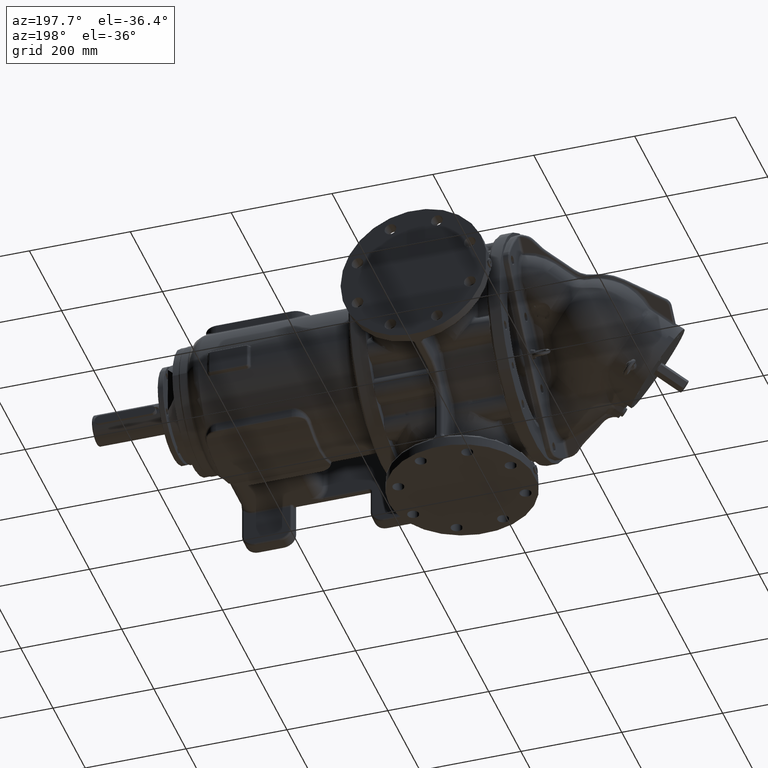
[diagram: clean part render]
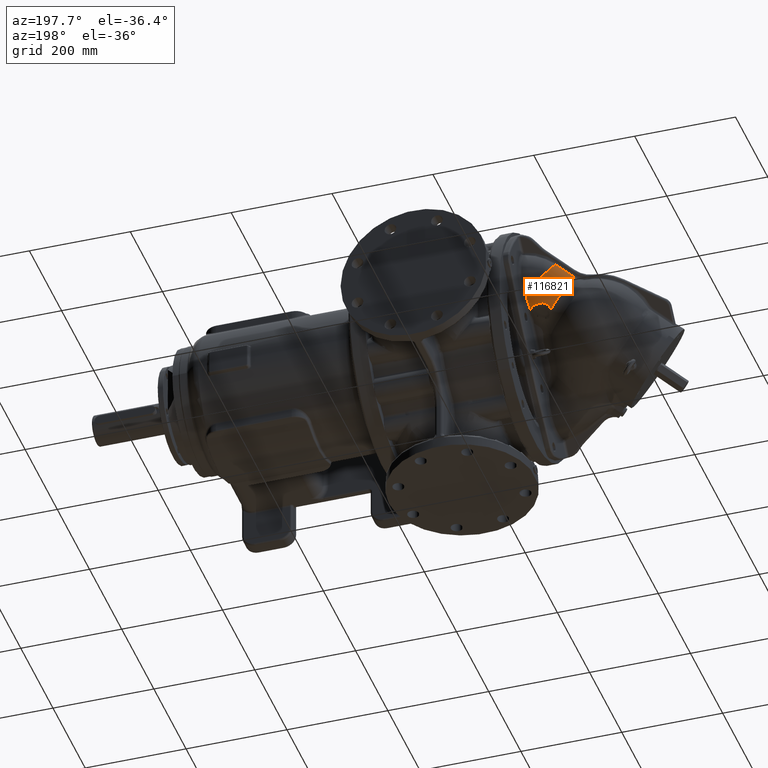
[diagram: same view with one face highlighted and labeled with its STEP entity id]
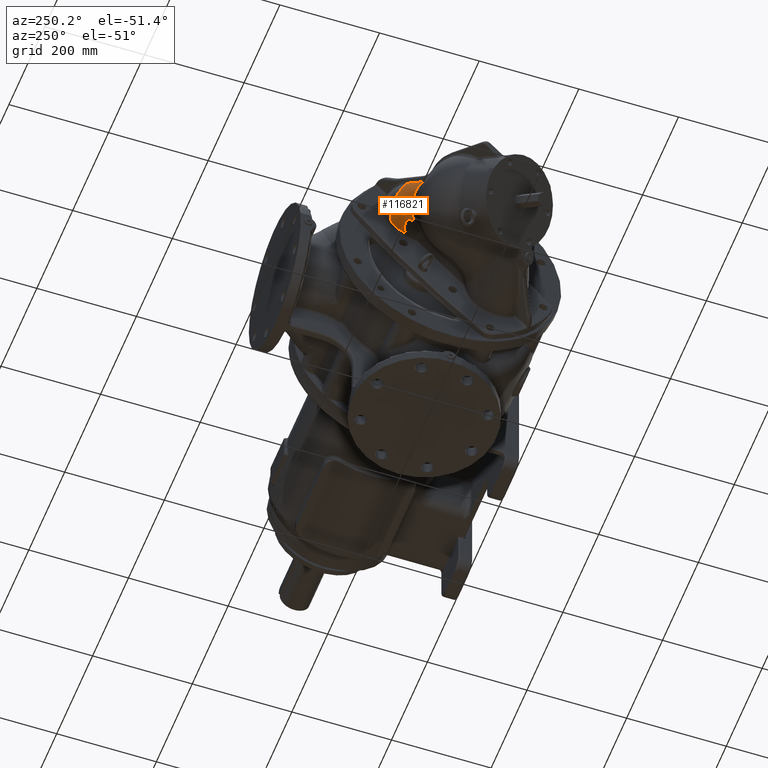
[diagram: same view with one face highlighted and labeled with its STEP entity id]
A machine part, auxiliary view. The second image highlights one B-rep face of the part: STEP entity #116821.
A second angle (auxiliary view) of the same face is appended — the face is thin or edge-on in the first view.
In plain terms, the highlighted cylindrical surface (edge-blend (fillet) strip) has radius 60.5 mm, axis along (-0.7071, -0.5, -0.5).
Its self-contained STEP definition (entity closure, byte-faithful):
#30306=CARTESIAN_POINT('',(-3.602881022043E2,1.137920930979E2,
9.942214244027E1));
#33292=DIRECTION('',(7.071103408978E-1,5.000103968482E-1,4.999845686010E-1));
#33293=VECTOR('',#33292,4.293914929783E1);
#33294=CARTESIAN_POINT('',(-3.906508187022E2,9.232207201714E1,
7.795323040250E1));
#33295=LINE('',#33294,#33293);
#33296=CARTESIAN_POINT('',(-3.484784450716E2,5.531727983645E1,
5.531727983646E1));
#33297=DIRECTION('',(-7.071067811866E-1,-5.E-1,-5.E-1));
#33298=DIRECTION('',(-6.970640269568E-1,6.116494575282E-1,3.741479432366E-1));
#33299=AXIS2_PLACEMENT_3D('',#33296,#33297,#33298);
#33301=CARTESIAN_POINT('',(-3.277808615411E2,1.064392253892E2,
2.131203307468E1));
#33302=CARTESIAN_POINT('',(-3.279172393567E2,1.064547069628E2,
2.131260126256E1));
#33303=CARTESIAN_POINT('',(-3.281902650575E2,1.064826438563E2,
2.131181172310E1));
#33304=CARTESIAN_POINT('',(-3.286008109201E2,1.065153525661E2,
2.130459424785E1));
#33305=CARTESIAN_POINT('',(-3.290117952177E2,1.065388436935E2,
2.129122580244E1));
#33306=CARTESIAN_POINT('',(-3.294228330722E2,1.065530880481E2,
2.127156127719E1));
#33307=CARTESIAN_POINT('',(-3.298334728117E2,1.065581011256E2,
2.124549515724E1));
#33308=CARTESIAN_POINT('',(-3.302432637518E2,1.065539272547E2,
2.121294351944E1));
#33309=CARTESIAN_POINT('',(-3.306517613649E2,1.065406511843E2,
2.117385583363E1));
#33310=CARTESIAN_POINT('',(-3.310584645723E2,1.065183656514E2,
2.112819027146E1));
#33311=CARTESIAN_POINT('',(-3.314631197318E2,1.064873318132E2,
2.107604404995E1));
#33312=CARTESIAN_POINT('',(-3.318658394777E2,1.064475847668E2,
2.101729238437E1));
#33313=CARTESIAN_POINT('',(-3.322666610266E2,1.063991571414E2,
2.095181832074E1));
#33314=CARTESIAN_POINT('',(-3.326656119636E2,1.063420667405E2,
2.087949733050E1));
#33315=CARTESIAN_POINT('',(-3.330621428015E2,1.062764238656E2,
2.080032159138E1));
#33316=CARTESIAN_POINT('',(-3.334557334932E2,1.062023660357E2,
2.071430707090E1));
#33317=CARTESIAN_POINT('',(-3.338458480612E2,1.061201013535E2,
2.062153836824E1));
#33318=CARTESIAN_POINT('',(-3.342321933315E2,1.060298457554E2,
2.052210225938E1));
#33319=CARTESIAN_POINT('',(-3.346144992373E2,1.059316505338E2,
2.041593368198E1));
#33320=CARTESIAN_POINT('',(-3.349924595697E2,1.058256434611E2,
2.030304569545E1));
#33321=CARTESIAN_POINT('',(-3.353661177528E2,1.057118624400E2,
2.018336096707E1));
#33322=CARTESIAN_POINT('',(-3.357355718940E2,1.055903111624E2,
2.005677545059E1));
#33323=CARTESIAN_POINT('',(-3.361009445739E2,1.054610124495E2,
1.992321077648E1));
#33324=CARTESIAN_POINT('',(-3.364620368581E2,1.053240783247E2,
1.978268990642E1));
#33325=CARTESIAN_POINT('',(-3.368185903566E2,1.051795585636E2,
1.963518275496E1));
#33326=CARTESIAN_POINT('',(-3.371702515848E2,1.050275776564E2,
1.948073964694E1));
#33327=CARTESIAN_POINT('',(-3.375163769180E2,1.048684032441E2,
1.931956180639E1));
#33328=CARTESIAN_POINT('',(-3.378563760516E2,1.047023623348E2,
1.915191411658E1));
#33329=CARTESIAN_POINT('',(-3.381899214578E2,1.045296689458E2,
1.897795472304E1));
#33330=CARTESIAN_POINT('',(-3.385165337797E2,1.043505363835E2,
1.879785116942E1));
#33331=CARTESIAN_POINT('',(-3.388365489011E2,1.041648167882E2,
1.861141400500E1));
#33332=CARTESIAN_POINT('',(-3.391514774737E2,1.039715841939E2,
1.841768384877E1));
#33333=CARTESIAN_POINT('',(-3.394621390674E2,1.037701601847E2,
1.821596157034E1));
#33334=CARTESIAN_POINT('',(-3.397664084668E2,1.035617856273E2,
1.800747818908E1));
#33335=CARTESIAN_POINT('',(-3.400626887905E2,1.033475744058E2,
1.779334248951E1));
#33336=CARTESIAN_POINT('',(-3.403514200727E2,1.031272141609E2,
1.757324582723E1));
#33337=CARTESIAN_POINT('',(-3.406328023609E2,1.029003804659E2,
1.734687959237E1));
#33338=CARTESIAN_POINT('',(-3.409067288881E2,1.026669674829E2,
1.711416341298E1));
#33339=CARTESIAN_POINT('',(-3.411731466827E2,1.024269140493E2,
1.687507013429E1));
#33340=CARTESIAN_POINT('',(-3.414320798041E2,1.021801843570E2,
1.662960635018E1));
#33341=CARTESIAN_POINT('',(-3.416834688712E2,1.019267819678E2,
1.637782808610E1));
#33342=CARTESIAN_POINT('',(-3.419270572625E2,1.016667383726E2,
1.611983172519E1));
#33343=CARTESIAN_POINT('',(-3.421624934980E2,1.014000296110E2,
1.585567222405E1));
#33344=CARTESIAN_POINT('',(-3.423894472189E2,1.011266113936E2,
1.558539674011E1));
#33345=CARTESIAN_POINT('',(-3.426080382413E2,1.008462231935E2,
1.530884586816E1));
#33346=CARTESIAN_POINT('',(-3.428183568641E2,1.005586125818E2,
1.502588078197E1));
#33347=CARTESIAN_POINT('',(-3.430203585746E2,1.002635009397E2,
1.473635389066E1));
#33348=CARTESIAN_POINT('',(-3.432134409558E2,9.996111483195E1,
1.444063298601E1));
#33349=CARTESIAN_POINT('',(-3.433971110222E2,9.965170536976E1,
1.413911944787E1));
#33350=CARTESIAN_POINT('',(-3.435709899270E2,9.933556441358E1,
1.383226094184E1));
#33351=CARTESIAN_POINT('',(-3.437353148459E2,9.901209912106E1,
1.351965449905E1));
#33352=CARTESIAN_POINT('',(-3.438900443488E2,9.868064739194E1,
1.320086185876E1));
#33353=CARTESIAN_POINT('',(-3.440350425975E2,9.834050312844E1,
1.287543317448E1));
#33354=CARTESIAN_POINT('',(-3.441699527057E2,9.799180109802E1,
1.254374034147E1));
#33355=CARTESIAN_POINT('',(-3.442945241023E2,9.763472549459E1,
1.220620864435E1));
#33356=CARTESIAN_POINT('',(-3.444082466069E2,9.726942218803E1,
1.186325486520E1));
#33357=CARTESIAN_POINT('',(-3.445104824120E2,9.689632104495E1,
1.151558014883E1));
#33358=CARTESIAN_POINT('',(-3.446009998803E2,9.651591601115E1,
1.116392827935E1));
#33359=CARTESIAN_POINT('',(-3.446795803299E2,9.612875057253E1,
1.080908691506E1));
#33360=CARTESIAN_POINT('',(-3.447458505142E2,9.573533875198E1,
1.045183062546E1));
#33361=CARTESIAN_POINT('',(-3.447816147426E2,9.546951969253E1,
1.021280470531E1));
#33362=CARTESIAN_POINT('',(-3.447973353311E2,9.533563299589E1,
1.009305135785E1));
#33364=CARTESIAN_POINT('',(-3.154133901482E2,1.037176145127E2,
2.128139557582E1));
#33365=CARTESIAN_POINT('',(-3.156533233150E2,1.038047506161E2,
2.128418616440E1));
#33366=CARTESIAN_POINT('',(-3.161506234311E2,1.039796696093E2,
2.128916459807E1));
#33367=CARTESIAN_POINT('',(-3.169525821759E2,1.042431386414E2,
2.129499993852E1));
#33368=CARTESIAN_POINT('',(-3.178017914878E2,1.045026743608E2,
2.129919709634E1));
#33369=CARTESIAN_POINT('',(-3.186933380094E2,1.047551683573E2,
2.130176114878E1));
#33370=CARTESIAN_POINT('',(-3.196381509782E2,1.050024791675E2,
2.130319217153E1));
#33371=CARTESIAN_POINT('',(-3.206383693559E2,1.052428189445E2,
2.130352118853E1));
#33372=CARTESIAN_POINT('',(-3.216892583095E2,1.054737468909E2,
2.130339835771E1));
#33373=CARTESIAN_POINT('',(-3.227959762805E2,1.056946099015E2,
2.130313742238E1));
#33374=CARTESIAN_POINT('',(-3.239587412003E2,1.059035818109E2,
2.130316808749E1));
#33375=CARTESIAN_POINT('',(-3.251747525406E2,1.060988410875E2,
2.130426432655E1));
#33376=CARTESIAN_POINT('',(-3.264454057129E2,1.062788429276E2,
2.130681459625E1));
#33377=CARTESIAN_POINT('',(-3.273295726295E2,1.063877884164E2,
2.130997626209E1));
#33378=CARTESIAN_POINT('',(-3.277808615411E2,1.064392253892E2,
2.131203307468E1));
#33380=CARTESIAN_POINT('',(-3.078408724165E2,9.899027769930E1,
2.060664155775E1));
#33381=CARTESIAN_POINT('',(-3.079323810160E2,9.908670762559E1,
2.062691541502E1));
#33382=CARTESIAN_POINT('',(-3.081192372322E2,9.927849184230E1,
2.066667055192E1));
#33383=CARTESIAN_POINT('',(-3.084113079735E2,9.956305586221E1,
2.072400006620E1));
#33384=CARTESIAN_POINT('',(-3.087146410465E2,9.984376583370E1,
2.077891261385E1));
#33385=CARTESIAN_POINT('',(-3.090288602912E2,1.001200821305E2,
2.083132438669E1));
#33386=CARTESIAN_POINT('',(-3.093535980969E2,1.003914542730E2,
2.088112685176E1));
#33387=CARTESIAN_POINT('',(-3.096881245784E2,1.006570426905E2,
2.092813301077E1));
#33388=CARTESIAN_POINT('',(-3.100333977453E2,1.009171728908E2,
2.097227702765E1));
#33389=CARTESIAN_POINT('',(-3.103918820838E2,1.011734924513E2,
2.101385146516E1));
#33390=CARTESIAN_POINT('',(-3.107657710010E2,1.014270305822E2,
2.105297347001E1));
#33391=CARTESIAN_POINT('',(-3.111542819382E2,1.016766880366E2,
2.108941739249E1));
#33392=CARTESIAN_POINT('',(-3.115561198682E2,1.019212897679E2,
2.112299804476E1));
#33393=CARTESIAN_POINT('',(-3.119720168404E2,1.021609931096E2,
2.115372953560E1));
#33394=CARTESIAN_POINT('',(-3.124038067869E2,1.023961585584E2,
2.118148555357E1));
#33395=CARTESIAN_POINT('',(-3.128534156201E2,1.026272266355E2,
2.120622064827E1));
#33396=CARTESIAN_POINT('',(-3.133240761224E2,1.028549692610E2,
2.122782675513E1));
#33397=CARTESIAN_POINT('',(-3.138176345901E2,1.030800717295E2,
2.124661638459E1));
#33398=CARTESIAN_POINT('',(-3.143315007631E2,1.033002566714E2,
2.126212744638E1));
#33399=CARTESIAN_POINT('',(-3.148637677203E2,1.035138016470E2,
2.127396326772E1));
#33400=CARTESIAN_POINT('',(-3.152284118981E2,1.036505605715E2,
2.127932761232E1));
#33401=CARTESIAN_POINT('',(-3.154133901482E2,1.037176145127E2,
2.128139557582E1));
#33403=CARTESIAN_POINT('',(-3.042684805720E2,9.278184176513E1,
1.903214689970E1));
#33404=CARTESIAN_POINT('',(-3.042935118779E2,9.288416432459E1,
1.906394915369E1));
#33405=CARTESIAN_POINT('',(-3.043471062585E2,9.309063114216E1,
1.912738493394E1));
#33406=CARTESIAN_POINT('',(-3.044406255005E2,9.340947252018E1,
1.922281746591E1));
#33407=CARTESIAN_POINT('',(-3.045454114448E2,9.373254933217E1,
1.931740178862E1));
#33408=CARTESIAN_POINT('',(-3.046608731712E2,9.405728437773E1,
1.941046454102E1));
#33409=CARTESIAN_POINT('',(-3.047859639758E2,9.438036774257E1,
1.950112033651E1));
#33410=CARTESIAN_POINT('',(-3.049196681405E2,9.469921235954E1,
1.958870119227E1));
#33411=CARTESIAN_POINT('',(-3.050630277073E2,9.501611092120E1,
1.967385708562E1));
#33412=CARTESIAN_POINT('',(-3.052174723351E2,9.533259608665E1,
1.975681826168E1));
#33413=CARTESIAN_POINT('',(-3.053840559693E2,9.565151306179E1,
1.983861488680E1));
#33414=CARTESIAN_POINT('',(-3.055651312019E2,9.597653476897E1,
1.992026133287E1));
#33415=CARTESIAN_POINT('',(-3.057623404597E2,9.630899839755E1,
2.000208847142E1));
#33416=CARTESIAN_POINT('',(-3.059732418639E2,9.664344926610E1,
2.008276069295E1));
#33417=CARTESIAN_POINT('',(-3.061949168052E2,9.697489925330E1,
2.016114050356E1));
#33418=CARTESIAN_POINT('',(-3.064284330365E2,9.730461011358E1,
2.023754790036E1));
#33419=CARTESIAN_POINT('',(-3.066760207041E2,9.763528458417E1,
2.031268020698E1));
#33420=CARTESIAN_POINT('',(-3.069393900747E2,9.796842848508E1,
2.038693422296E1));
#33421=CARTESIAN_POINT('',(-3.072198361179E2,9.830476977637E1,
2.046053543640E1));
#33422=CARTESIAN_POINT('',(-3.075186716373E2,9.864490528317E1,
2.053368523575E1));
#33423=CARTESIAN_POINT('',(-3.077312336968E2,9.887474603456E1,
2.058235604905E1));
#33424=CARTESIAN_POINT('',(-3.078408724165E2,9.899027769930E1,
2.060664155775E1));
#33426=CARTESIAN_POINT('',(-3.030927737981E2,1.141212573313E2,
3.115143732774E1));
#33427=CARTESIAN_POINT('',(-3.031227256820E2,1.135808741828E2,
3.076800456572E1));
#33428=CARTESIAN_POINT('',(-3.031827509545E2,1.124973497970E2,
3.001187088056E1));
#33429=CARTESIAN_POINT('',(-3.032731474184E2,1.108639674512E2,
2.890959851990E1));
#33430=CARTESIAN_POINT('',(-3.033638054288E2,1.092242300922E2,
2.784007244401E1));
#33431=CARTESIAN_POINT('',(-3.034546570154E2,1.075794841326E2,
2.680375387292E1));
#33432=CARTESIAN_POINT('',(-3.035456229304E2,1.059311984544E2,
2.580113457971E1));
#33433=CARTESIAN_POINT('',(-3.036366166762E2,1.042807951140E2,
2.483261814305E1));
#33434=CARTESIAN_POINT('',(-3.037275589293E2,1.026297222026E2,
2.389856383539E1));
#33435=CARTESIAN_POINT('',(-3.038183798606E2,1.009793130559E2,
2.299921009207E1));
#33436=CARTESIAN_POINT('',(-3.039090177882E2,9.933093125864E1,
2.213475774817E1));
#33437=CARTESIAN_POINT('',(-3.039993920148E2,9.768571151279E1,
2.130525382983E1));
#33438=CARTESIAN_POINT('',(-3.040894788563E2,9.604486132338E1,
2.051072748827E1));
#33439=CARTESIAN_POINT('',(-3.041790787068E2,9.440917538541E1,
1.975103765263E1));
#33440=CARTESIAN_POINT('',(-3.042387999504E2,9.332370937987E1,
1.926801901031E1));
#33441=CARTESIAN_POINT('',(-3.042684805720E2,9.278184176513E1,
1.903214689970E1));
#33443=CARTESIAN_POINT('',(-3.067088925559E2,1.276327742327E2,
4.207285370915E1));
#33444=CARTESIAN_POINT('',(-3.066071239607E2,1.272885404654E2,
4.172863690582E1));
#33445=CARTESIAN_POINT('',(-3.064031502362E2,1.265942492482E2,
4.104647186798E1));
#33446=CARTESIAN_POINT('',(-3.060979963593E2,1.255351487392E2,
4.004201531616E1));
#33447=CARTESIAN_POINT('',(-3.057929143626E2,1.244592026113E2,
3.905705442836E1));
#33448=CARTESIAN_POINT('',(-3.054883748989E2,1.233669146124E2,
3.809201552736E1));
#33449=CARTESIAN_POINT('',(-3.051845311714E2,1.222588779087E2,
3.714736424353E1));
#33450=CARTESIAN_POINT('',(-3.048815962192E2,1.211357381580E2,
3.622358490538E1));
#33451=CARTESIAN_POINT('',(-3.045797208967E2,1.199982425717E2,
3.532121538978E1));
#33452=CARTESIAN_POINT('',(-3.042790790664E2,1.188471600471E2,
3.444076882936E1));
#33453=CARTESIAN_POINT('',(-3.039798261344E2,1.176832797064E2,
3.358273720161E1));
#33454=CARTESIAN_POINT('',(-3.036821752165E2,1.165074114813E2,
3.274757592877E1));
#33455=CARTESIAN_POINT('',(-3.033863106087E2,1.153203069185E2,
3.193566712043E1));
#33456=CARTESIAN_POINT('',(-3.031903940675E2,1.145220541766E2,
3.141021002024E1));
#33457=CARTESIAN_POINT('',(-3.030927737981E2,1.141212573313E2,
3.115143732774E1));
#33459=CARTESIAN_POINT('',(-3.067088927335E2,1.276327744148E2,
4.207285389122E1));
#33460=CARTESIAN_POINT('',(-3.070645793954E2,1.277813882454E2,
4.222158493584E1));
#33461=CARTESIAN_POINT('',(-3.077954828422E2,1.280497121828E2,
4.250074955885E1));
#33462=CARTESIAN_POINT('',(-3.088596051373E2,1.284765251180E2,
4.297803689715E1));
#33463=CARTESIAN_POINT('',(-3.099348680238E2,1.288726552446E2,
4.345819816659E1));
#33464=CARTESIAN_POINT('',(-3.110081817004E2,1.292529020398E2,
4.395612888611E1));
#33465=CARTESIAN_POINT('',(-3.120815888966E2,1.296133794126E2,
4.446777238576E1));
#33466=CARTESIAN_POINT('',(-3.131530213938E2,1.299552228638E2,
4.499408729218E1));
#33467=CARTESIAN_POINT('',(-3.142217670030E2,1.302783226847E2,
4.553476397057E1));
#33468=CARTESIAN_POINT('',(-3.152870924322E2,1.305830796930E2,
4.609006756550E1));
#33469=CARTESIAN_POINT('',(-3.163482905519E2,1.308696978255E2,
4.666003975167E1));
#33470=CARTESIAN_POINT('',(-3.174047492073E2,1.311387977619E2,
4.724528598495E1));
#33471=CARTESIAN_POINT('',(-3.184558545108E2,1.313911025230E2,
4.784663632852E1));
#33472=CARTESIAN_POINT('',(-3.195020426807E2,1.316260161317E2,
4.846345624146E1));
#33473=CARTESIAN_POINT('',(-3.205436023341E2,1.318432644849E2,
4.909554021420E1));
#33474=CARTESIAN_POINT('',(-3.215801546214E2,1.320423466104E2,
4.974215952373E1));
#33475=CARTESIAN_POINT('',(-3.226110234991E2,1.322227949153E2,
5.040242900337E1));
#33476=CARTESIAN_POINT('',(-3.236356412217E2,1.323841906241E2,
5.107546066395E1));
#33477=CARTESIAN_POINT('',(-3.246532631754E2,1.325262486551E2,
5.176038472405E1));
#33478=CARTESIAN_POINT('',(-3.256639847737E2,1.326485092253E2,
5.245631423639E1));
#33479=CARTESIAN_POINT('',(-3.266669603388E2,1.327517075953E2,
5.316391663574E1));
#33480=CARTESIAN_POINT('',(-3.276608601037E2,1.328369745639E2,
5.388438752966E1));
#33481=CARTESIAN_POINT('',(-3.286459904046E2,1.329038143928E2,
5.461697332893E1));
#33482=CARTESIAN_POINT('',(-3.296218908526E2,1.329521589287E2,
5.536121163908E1));
#33483=CARTESIAN_POINT('',(-3.305881373110E2,1.329818589513E2,
5.611644078380E1));
#33484=CARTESIAN_POINT('',(-3.315442872771E2,1.329928444447E2,
5.688206742415E1));
#33485=CARTESIAN_POINT('',(-3.324898847239E2,1.329850610432E2,
5.765743396039E1));
#33486=CARTESIAN_POINT('',(-3.334247631265E2,1.329585664544E2,
5.844232139630E1));
#33487=CARTESIAN_POINT('',(-3.343491106478E2,1.329131397188E2,
5.923620865608E1));
#33488=CARTESIAN_POINT('',(-3.352618077260E2,1.328497370845E2,
6.004015133280E1));
#33489=CARTESIAN_POINT('',(-3.361626391676E2,1.327684467242E2,
6.085410793011E1));
#33490=CARTESIAN_POINT('',(-3.370515433999E2,1.326690228693E2,
6.167733121388E1));
#33491=CARTESIAN_POINT('',(-3.379283197380E2,1.325513596852E2,
6.250920849185E1));
#33492=CARTESIAN_POINT('',(-3.387927872862E2,1.324153591578E2,
6.334910394771E1));
#33493=CARTESIAN_POINT('',(-3.396447272944E2,1.322609724121E2,
6.419640560522E1));
#33494=CARTESIAN_POINT('',(-3.404836791964E2,1.320882217903E2,
6.505022228437E1));
#33495=CARTESIAN_POINT('',(-3.413091079403E2,1.318972685596E2,
6.590981762191E1));
#33496=CARTESIAN_POINT('',(-3.421208196077E2,1.316880504462E2,
6.677405633521E1));
#33497=CARTESIAN_POINT('',(-3.429163773312E2,1.314624369305E2,
6.764461536380E1));
#33498=CARTESIAN_POINT('',(-3.436967105933E2,1.312200172477E2,
6.852143346053E1));
#33499=CARTESIAN_POINT('',(-3.444624343787E2,1.309605103153E2,
6.940457589017E1));
#33500=CARTESIAN_POINT('',(-3.452142464005E2,1.306835399636E2,
7.029421958827E1));
#33501=CARTESIAN_POINT('',(-3.459524540518E2,1.303888224397E2,
7.119023905586E1));
#33502=CARTESIAN_POINT('',(-3.466759998247E2,1.300766619593E2,
7.209085901217E1));
#33503=CARTESIAN_POINT('',(-3.473840511813E2,1.297474252128E2,
7.299458835501E1));
#33504=CARTESIAN_POINT('',(-3.480757177479E2,1.294016122531E2,
7.389960442221E1));
#33505=CARTESIAN_POINT('',(-3.487504210634E2,1.290397960963E2,
7.480532389764E1));
#33506=CARTESIAN_POINT('',(-3.494069377672E2,1.286632204942E2,
7.571498125125E1));
#33507=CARTESIAN_POINT('',(-3.500467504351E2,1.282709375584E2,
7.662829509584E1));
#33508=CARTESIAN_POINT('',(-3.506708244166E2,1.278622916766E2,
7.754609342273E1));
#33509=CARTESIAN_POINT('',(-3.512794078743E2,1.274369702057E2,
7.846790198132E1));
#33510=CARTESIAN_POINT('',(-3.518715746962E2,1.269955615613E2,
7.939166753939E1));
#33511=CARTESIAN_POINT('',(-3.524467495033E2,1.265385787410E2,
8.031565698899E1));
#33512=CARTESIAN_POINT('',(-3.530040340465E2,1.260669299226E2,
8.123810111507E1));
#33513=CARTESIAN_POINT('',(-3.535437949018E2,1.255807250394E2,
8.215738589604E1));
#33514=CARTESIAN_POINT('',(-3.540640266591E2,1.250816426134E2,
8.307534157201E1));
#33515=CARTESIAN_POINT('',(-3.545636589652E2,1.245706477947E2,
8.399290378339E1));
#33516=CARTESIAN_POINT('',(-3.550434616579E2,1.240476309310E2,
8.490823711261E1));
#33517=CARTESIAN_POINT('',(-3.555054981406E2,1.235107122694E2,
8.582394276824E1));
#33518=CARTESIAN_POINT('',(-3.559529233478E2,1.229561659394E2,
8.674523973772E1));
#33519=CARTESIAN_POINT('',(-3.563888989383E2,1.223789861540E2,
8.767889815940E1));
#33520=CARTESIAN_POINT('',(-3.568078188890E2,1.217856664020E2,
8.861298214174E1));
#33521=CARTESIAN_POINT('',(-3.572027588435E2,1.211868293991E2,
8.953105713958E1));
#33522=CARTESIAN_POINT('',(-3.575699180471E2,1.205916835426E2,
9.041954519558E1));
#33523=CARTESIAN_POINT('',(-3.579114130267E2,1.199983699587E2,
9.128646307500E1));
#33524=CARTESIAN_POINT('',(-3.582290105227E2,1.194049432071E2,
9.213790565574E1));
#33525=CARTESIAN_POINT('',(-3.585263357518E2,1.188076686563E2,
9.297811257686E1));
#33526=CARTESIAN_POINT('',(-3.588053794912E2,1.182040770438E2,
9.381050177092E1));
#33527=CARTESIAN_POINT('',(-3.590681197419E2,1.175909649778E2,
9.463908320107E1));
#33528=CARTESIAN_POINT('',(-3.593154542590E2,1.169664732230E2,
9.546591620660E1));
#33529=CARTESIAN_POINT('',(-3.595461782271E2,1.163340497233E2,
9.628616212245E1));
#33530=CARTESIAN_POINT('',(-3.597596154604E2,1.156966910898E2,
9.709606729404E1));
#33531=CARTESIAN_POINT('',(-3.599551914070E2,1.150578825803E2,
9.789171023728E1));
#33532=CARTESIAN_POINT('',(-3.601326364069E2,1.144209562721E2,
9.866961888641E1));
#33533=CARTESIAN_POINT('',(-3.602386142693E2,1.140007275132E2,
9.917359181713E1));
#33534=CARTESIAN_POINT('',(-3.602883183462E2,1.137918109898E2,
9.942241849943E1));
#43905=CARTESIAN_POINT('',(-3.067088925559E2,1.276327742327E2,
4.207285370915E1));
#49176=VERTEX_POINT('',#33426);
#49177=VERTEX_POINT('',#33441);
#49186=VERTEX_POINT('',#43905);
#49202=VERTEX_POINT('',#30306);
#49206=CARTESIAN_POINT('',(-3.906508187022E2,9.232207201714E1,
7.795323040250E1));
#49207=VERTEX_POINT('',#49206);
#49248=VERTEX_POINT('',#33380);
#49249=VERTEX_POINT('',#33401);
#49252=VERTEX_POINT('',#33378);
#49275=VERTEX_POINT('',#33362);
#116799=CARTESIAN_POINT('',(-2.674332078832E2,1.126249166352E2,
1.126249166352E2));
#116800=DIRECTION('',(-7.071067811866E-1,-5.E-1,-5.E-1));
#116801=DIRECTION('',(7.071067811865E-1,-5.E-1,-5.E-1));
#116802=AXIS2_PLACEMENT_3D('',#116799,#116800,#116801);
#116803=CYLINDRICAL_SURFACE('',#116802,6.05E1);
#116805=ORIENTED_EDGE('',*,*,#116804,.F.);
#116807=ORIENTED_EDGE('',*,*,#116806,.T.);
#116809=ORIENTED_EDGE('',*,*,#116808,.F.);
#116811=ORIENTED_EDGE('',*,*,#116810,.F.);
#116813=ORIENTED_EDGE('',*,*,#116812,.F.);
#116814=ORIENTED_EDGE('',*,*,#116787,.F.);
#116815=ORIENTED_EDGE('',*,*,#114749,.F.);
#116817=ORIENTED_EDGE('',*,*,#116816,.F.);
#116818=ORIENTED_EDGE('',*,*,#114956,.T.);
#116819=EDGE_LOOP('',(#116805,#116807,#116809,#116811,#116813,#116814,#116815,
#116817,#116818));
#116820=FACE_OUTER_BOUND('',#116819,.F.);
#116821=ADVANCED_FACE('',(#116820),#116803,.T.);
#33300=CIRCLE('',#33299,6.05E1);
#33363=B_SPLINE_CURVE_WITH_KNOTS('',3,(#33301,#33302,#33303,#33304,#33305,
#33306,#33307,#33308,#33309,#33310,#33311,#33312,#33313,#33314,#33315,#33316,
#33317,#33318,#33319,#33320,#33321,#33322,#33323,#33324,#33325,#33326,#33327,
#33328,#33329,#33330,#33331,#33332,#33333,#33334,#33335,#33336,#33337,#33338,
#33339,#33340,#33341,#33342,#33343,#33344,#33345,#33346,#33347,#33348,#33349,
#33350,#33351,#33352,#33353,#33354,#33355,#33356,#33357,#33358,#33359,#33360,
#33361,#33362),.UNSPECIFIED.,.F.,.F.,(4,1,1,1,1,1,1,1,1,1,1,1,1,1,1,1,1,1,1,1,1,
1,1,1,1,1,1,1,1,1,1,1,1,1,1,1,1,1,1,1,1,1,1,1,1,1,1,1,1,1,1,1,1,1,1,1,1,1,1,4),(
0.E0,1.694915254237E-2,3.389830508475E-2,5.084745762712E-2,6.779661016949E-2,
8.474576271186E-2,1.016949152542E-1,1.186440677966E-1,1.355932203390E-1,
1.525423728814E-1,1.694915254237E-1,1.864406779661E-1,2.033898305085E-1,
2.203389830508E-1,2.372881355932E-1,2.542372881356E-1,2.711864406780E-1,
2.881355932203E-1,3.050847457627E-1,3.220338983051E-1,3.389830508475E-1,
3.559322033898E-1,3.728813559322E-1,3.898305084746E-1,4.067796610169E-1,
4.237288135593E-1,4.406779661017E-1,4.576271186441E-1,4.745762711864E-1,
4.915254237288E-1,5.084745762712E-1,5.254237288136E-1,5.423728813559E-1,
5.593220338983E-1,5.762711864407E-1,5.932203389831E-1,6.101694915254E-1,
6.271186440678E-1,6.440677966102E-1,6.610169491525E-1,6.779661016949E-1,
6.949152542373E-1,7.118644067797E-1,7.288135593220E-1,7.457627118644E-1,
7.627118644068E-1,7.796610169492E-1,7.966101694915E-1,8.135593220339E-1,
8.305084745763E-1,8.474576271186E-1,8.644067796610E-1,8.813559322034E-1,
8.983050847458E-1,9.152542372881E-1,9.322033898305E-1,9.491525423729E-1,
9.661016949153E-1,9.830508474576E-1,1.E0),.UNSPECIFIED.);
#33379=B_SPLINE_CURVE_WITH_KNOTS('',3,(#33364,#33365,#33366,#33367,#33368,
#33369,#33370,#33371,#33372,#33373,#33374,#33375,#33376,#33377,#33378),
.UNSPECIFIED.,.F.,.F.,(4,1,1,1,1,1,1,1,1,1,1,1,4),(0.E0,8.333333333333E-2,
1.666666666667E-1,2.5E-1,3.333333333333E-1,4.166666666667E-1,5.E-1,
5.833333333333E-1,6.666666666667E-1,7.5E-1,8.333333333333E-1,9.166666666667E-1,
1.E0),.UNSPECIFIED.);
#33402=B_SPLINE_CURVE_WITH_KNOTS('',3,(#33380,#33381,#33382,#33383,#33384,
#33385,#33386,#33387,#33388,#33389,#33390,#33391,#33392,#33393,#33394,#33395,
#33396,#33397,#33398,#33399,#33400,#33401),.UNSPECIFIED.,.F.,.F.,(4,1,1,1,1,1,1,
1,1,1,1,1,1,1,1,1,1,1,1,4),(0.E0,5.263157894737E-2,1.052631578947E-1,
1.578947368421E-1,2.105263157895E-1,2.631578947368E-1,3.157894736842E-1,
3.684210526316E-1,4.210526315789E-1,4.736842105263E-1,5.263157894737E-1,
5.789473684211E-1,6.315789473684E-1,6.842105263158E-1,7.368421052632E-1,
7.894736842105E-1,8.421052631579E-1,8.947368421053E-1,9.473684210526E-1,1.E0),
.UNSPECIFIED.);
#33425=B_SPLINE_CURVE_WITH_KNOTS('',3,(#33403,#33404,#33405,#33406,#33407,
#33408,#33409,#33410,#33411,#33412,#33413,#33414,#33415,#33416,#33417,#33418,
#33419,#33420,#33421,#33422,#33423,#33424),.UNSPECIFIED.,.F.,.F.,(4,1,1,1,1,1,1,
1,1,1,1,1,1,1,1,1,1,1,1,4),(0.E0,5.263157894737E-2,1.052631578947E-1,
1.578947368421E-1,2.105263157895E-1,2.631578947368E-1,3.157894736842E-1,
3.684210526316E-1,4.210526315789E-1,4.736842105263E-1,5.263157894737E-1,
5.789473684211E-1,6.315789473684E-1,6.842105263158E-1,7.368421052632E-1,
7.894736842105E-1,8.421052631579E-1,8.947368421053E-1,9.473684210526E-1,1.E0),
.UNSPECIFIED.);
#33442=B_SPLINE_CURVE_WITH_KNOTS('',3,(#33426,#33427,#33428,#33429,#33430,
#33431,#33432,#33433,#33434,#33435,#33436,#33437,#33438,#33439,#33440,#33441),
.UNSPECIFIED.,.F.,.F.,(4,1,1,1,1,1,1,1,1,1,1,1,1,4),(0.E0,7.692307692308E-2,
1.538461538462E-1,2.307692307692E-1,3.076923076923E-1,3.846153846154E-1,
4.615384615385E-1,5.384615384615E-1,6.153846153846E-1,6.923076923077E-1,
7.692307692308E-1,8.461538461538E-1,9.230769230769E-1,1.E0),.UNSPECIFIED.);
#33458=B_SPLINE_CURVE_WITH_KNOTS('',3,(#33443,#33444,#33445,#33446,#33447,
#33448,#33449,#33450,#33451,#33452,#33453,#33454,#33455,#33456,#33457),
.UNSPECIFIED.,.F.,.F.,(4,1,1,1,1,1,1,1,1,1,1,1,4),(0.E0,8.333333333333E-2,
1.666666666667E-1,2.5E-1,3.333333333333E-1,4.166666666667E-1,5.E-1,
5.833333333333E-1,6.666666666667E-1,7.5E-1,8.333333333333E-1,9.166666666667E-1,
1.E0),.UNSPECIFIED.);
#33535=B_SPLINE_CURVE_WITH_KNOTS('',3,(#33459,#33460,#33461,#33462,#33463,
#33464,#33465,#33466,#33467,#33468,#33469,#33470,#33471,#33472,#33473,#33474,
#33475,#33476,#33477,#33478,#33479,#33480,#33481,#33482,#33483,#33484,#33485,
#33486,#33487,#33488,#33489,#33490,#33491,#33492,#33493,#33494,#33495,#33496,
#33497,#33498,#33499,#33500,#33501,#33502,#33503,#33504,#33505,#33506,#33507,
#33508,#33509,#33510,#33511,#33512,#33513,#33514,#33515,#33516,#33517,#33518,
#33519,#33520,#33521,#33522,#33523,#33524,#33525,#33526,#33527,#33528,#33529,
#33530,#33531,#33532,#33533,#33534),.UNSPECIFIED.,.F.,.F.,(4,1,1,1,1,1,1,1,1,1,
1,1,1,1,1,1,1,1,1,1,1,1,1,1,1,1,1,1,1,1,1,1,1,1,1,1,1,1,1,1,1,1,1,1,1,1,1,1,1,1,
1,1,1,1,1,1,1,1,1,1,1,1,1,1,1,1,1,1,1,1,1,1,1,4),(0.E0,1.369863013699E-2,
2.739726027397E-2,4.109589041096E-2,5.479452054795E-2,6.849315068493E-2,
8.219178082192E-2,9.589041095890E-2,1.095890410959E-1,1.232876712329E-1,
1.369863013699E-1,1.506849315068E-1,1.643835616438E-1,1.780821917808E-1,
1.917808219178E-1,2.054794520548E-1,2.191780821918E-1,2.328767123288E-1,
2.465753424658E-1,2.602739726027E-1,2.739726027397E-1,2.876712328767E-1,
3.013698630137E-1,3.150684931507E-1,3.287671232877E-1,3.424657534247E-1,
3.561643835616E-1,3.698630136986E-1,3.835616438356E-1,3.972602739726E-1,
4.109589041096E-1,4.246575342466E-1,4.383561643836E-1,4.520547945205E-1,
4.657534246575E-1,4.794520547945E-1,4.931506849315E-1,5.068493150685E-1,
5.205479452055E-1,5.342465753425E-1,5.479452054795E-1,5.616438356164E-1,
5.753424657534E-1,5.890410958904E-1,6.027397260274E-1,6.164383561644E-1,
6.301369863014E-1,6.438356164384E-1,6.575342465753E-1,6.712328767123E-1,
6.849315068493E-1,6.986301369863E-1,7.123287671233E-1,7.260273972603E-1,
7.397260273973E-1,7.534246575342E-1,7.671232876712E-1,7.808219178082E-1,
7.945205479452E-1,8.082191780822E-1,8.219178082192E-1,8.356164383562E-1,
8.493150684932E-1,8.630136986301E-1,8.767123287671E-1,8.904109589041E-1,
9.041095890411E-1,9.178082191781E-1,9.315068493151E-1,9.452054794521E-1,
9.589041095890E-1,9.726027397260E-1,9.863013698630E-1,1.E0),.UNSPECIFIED.);
#114749=EDGE_CURVE('',#49176,#49177,#33442,.T.);
#114956=EDGE_CURVE('',#49186,#49202,#33535,.T.);
#116787=EDGE_CURVE('',#49177,#49248,#33425,.T.);
#116804=EDGE_CURVE('',#49207,#49202,#33295,.T.);
#116806=EDGE_CURVE('',#49207,#49275,#33300,.T.);
#116808=EDGE_CURVE('',#49252,#49275,#33363,.T.);
#116810=EDGE_CURVE('',#49249,#49252,#33379,.T.);
#116812=EDGE_CURVE('',#49248,#49249,#33402,.T.);
#116816=EDGE_CURVE('',#49186,#49176,#33458,.T.);